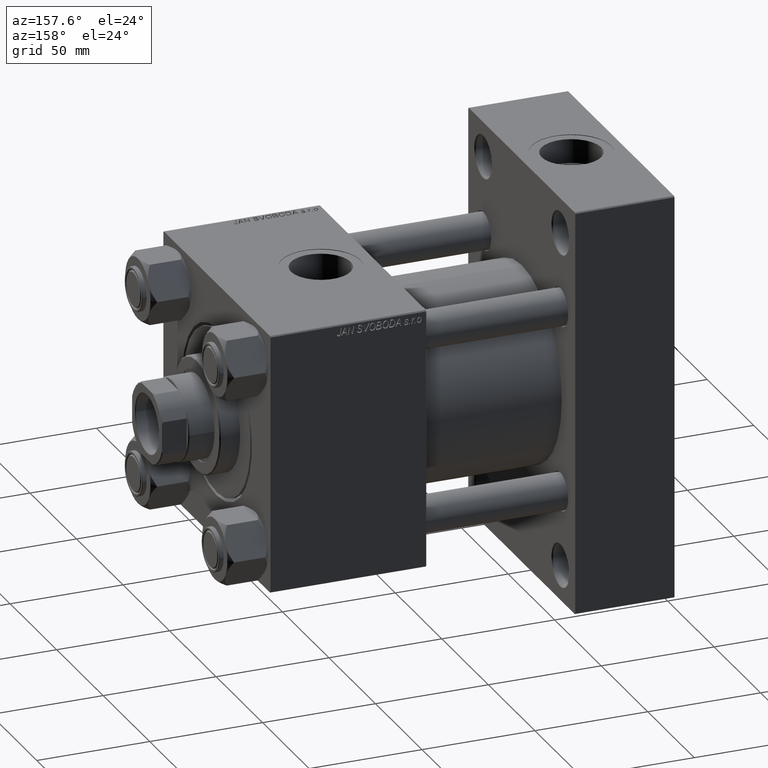
[diagram: clean part render]
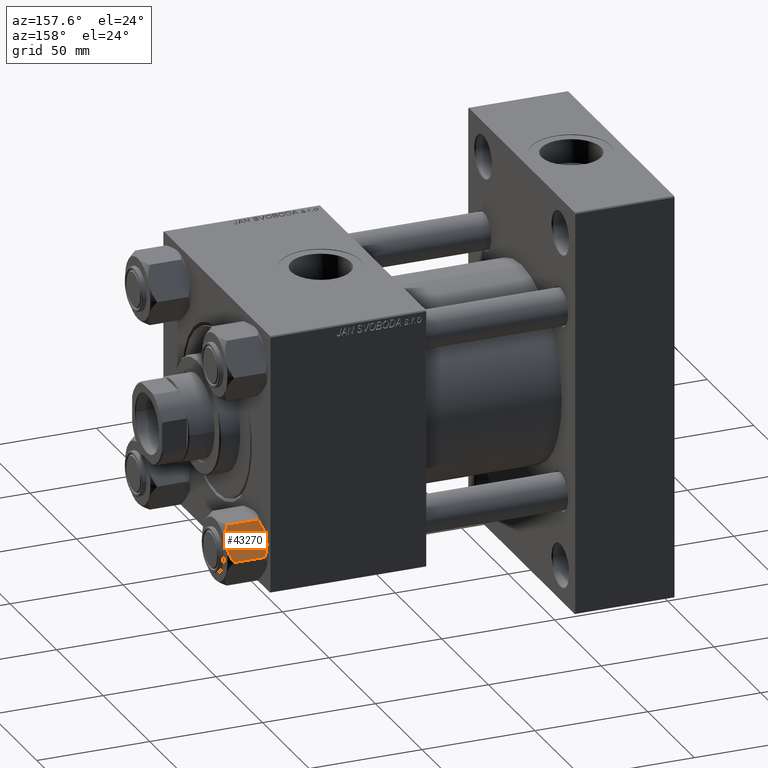
[diagram: same view with one face highlighted and labeled with its STEP entity id]
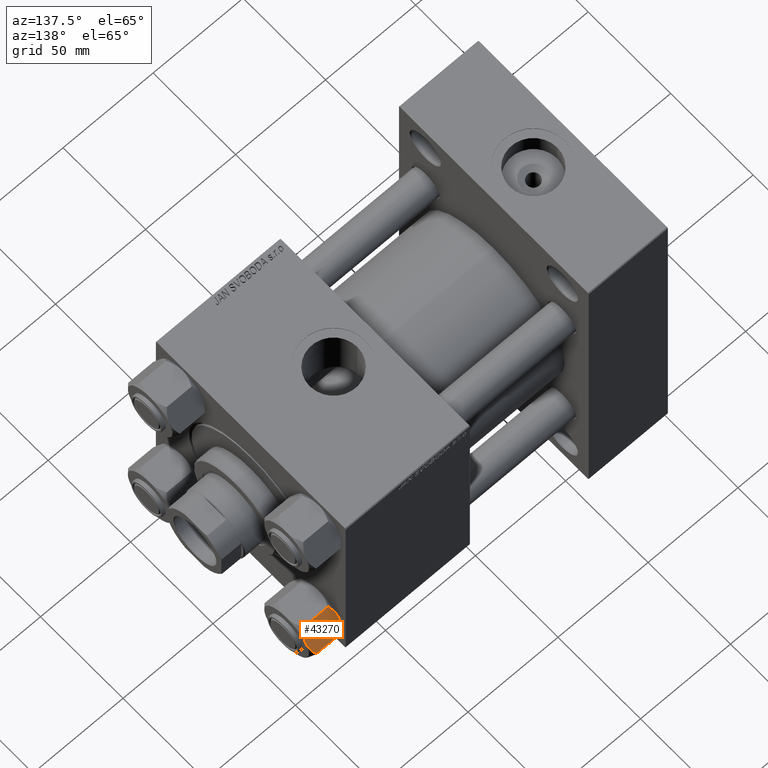
[diagram: same view with one face highlighted and labeled with its STEP entity id]
A machine part, auxiliary view. The second image highlights one B-rep face of the part: STEP entity #43270.
A second angle (auxiliary view) of the same face is appended — the face is thin or edge-on in the first view.
In plain terms, the highlighted planar face has unit normal (-0, -0.866, -0.5).
Its self-contained STEP definition (entity closure, byte-faithful):
#900 = EDGE_CURVE ( 'NONE', #38162, #44359, #34980, .T. ) ;
#1143 = CARTESIAN_POINT ( 'NONE',  ( -7.809999999999999609, -13.52731680711293727, -18.00000000000000000 ) ) ;
#2049 = VECTOR ( 'NONE', #3247, 1000.000000000000000 ) ;
#2187 = EDGE_CURVE ( 'NONE', #48118, #24276, #43712, .T. ) ;
#2290 = CARTESIAN_POINT ( 'NONE',  ( -11.71499999999999986, -6.763658403556454424, -18.00000000000000000 ) ) ;
#2307 = CARTESIAN_POINT ( 'NONE',  ( -10.40215497533437805, -9.037572688741335014, -0.1971866459924560555 ) ) ;
#3247 = DIRECTION ( 'NONE',  ( -0.000000000000000000, -0.000000000000000000, 1.000000000000000000 ) ) ;
#3685 = ORIENTED_EDGE ( 'NONE', *, *, #45325, .F. ) ;
#4723 = DIRECTION ( 'NONE',  ( -0.4999999999999993894, 0.8660254037844389297, 0.000000000000000000 ) ) ;
#5690 = CARTESIAN_POINT ( 'NONE',  ( -13.04337073483127973, -4.462852799541074056, -0.2430846701012976674 ) ) ;
#5782 = EDGE_CURVE ( 'NONE', #49976, #39291, #49123, .T. ) ;
#6100 = CARTESIAN_POINT ( 'NONE',  ( -11.38181071908714515, -7.340759166634855504, -17.99999999999998934 ) ) ;
#6547 = ORIENTED_EDGE ( 'NONE', *, *, #5782, .F. ) ;
#6570 = CARTESIAN_POINT ( 'NONE',  ( -7.809999999999999609, -13.52731680711293727, -18.00000000000000000 ) ) ;
#6867 = CARTESIAN_POINT ( 'NONE',  ( -9.114548888011793082, -11.26777185211902399, -17.08577173959729834 ) ) ;
#6868 = VECTOR ( 'NONE', #14169, 999.9999999999998863 ) ;
#7177 = CARTESIAN_POINT ( 'NONE',  ( -14.92394044919338292, -1.205610507090625561, -16.56553707812498999 ) ) ;
#7236 = DIRECTION ( 'NONE',  ( 0.4999999999999994449, -0.8660254037844390407, 0.000000000000000000 ) ) ;
#7745 = ORIENTED_EDGE ( 'NONE', *, *, #9347, .T. ) ;
#9347 = EDGE_CURVE ( 'NONE', #38987, #44359, #25960, .T. ) ;
#9931 = CARTESIAN_POINT ( 'NONE',  ( -9.439480280627266851, -10.70497417113491245, -0.7317196846281139866 ) ) ;
#10138 = LINE ( 'NONE', #37718, #29041 ) ;
#10271 = CARTESIAN_POINT ( 'NONE',  ( -12.38621571200405569, -5.601078687526920064, -0.05089381635301479939 ) ) ;
#10760 = EDGE_CURVE ( 'NONE', #39291, #15651, #10138, .T. ) ;
#10842 = ORIENTED_EDGE ( 'NONE', *, *, #2187, .F. ) ;
#11140 = ORIENTED_EDGE ( 'NONE', *, *, #17003, .F. ) ;
#11242 = CARTESIAN_POINT ( 'NONE',  ( -15.22736220980735489, -0.6800686015852174249, -16.29368822085854873 ) ) ;
#11664 = VECTOR ( 'NONE', #46936, 999.9999999999998863 ) ;
#11665 = B_SPLINE_CURVE_WITH_KNOTS ( 'NONE', 3,
 ( #30406, #22983, #45952, #34740, #42394, #7177, #11242, #30902 ),
 .UNSPECIFIED., .F., .F.,
 ( 4, 2, 2, 4 ),
 ( 0.007890825462474411814, 0.01181022244528552416, 0.01376992093669107860, 0.01572961942809663477 ),
 .UNSPECIFIED. ) ;
#12540 = ORIENTED_EDGE ( 'NONE', *, *, #20776, .F. ) ;
#14169 = DIRECTION ( 'NONE',  ( -0.4999999999999994449, 0.8660254037844390407, 0.000000000000000000 ) ) ;
#14186 = CARTESIAN_POINT ( 'NONE',  ( -7.809999999999999609, -13.52731680711293727, -1.999999999999998224 ) ) ;
#14264 = CARTESIAN_POINT ( 'NONE',  ( -7.903528262322684128, -13.36532110482641400, -2.000000000000000000 ) ) ;
#15171 = LINE ( 'NONE', #34859, #48658 ) ;
#15369 = VERTEX_POINT ( 'NONE', #39232 ) ;
#15420 = DIRECTION ( 'NONE',  ( -0.4999999999999994449, 0.8660254037844390407, 0.000000000000000000 ) ) ;
#15651 = VERTEX_POINT ( 'NONE', #41506 ) ;
#17003 = EDGE_CURVE ( 'NONE', #15651, #15369, #31717, .T. ) ;
#17362 = EDGE_CURVE ( 'NONE', #24276, #49976, #11665, .T. ) ;
#17847 = CARTESIAN_POINT ( 'NONE',  ( -8.202637790192653711, -12.84724820552769664, -1.706311779141443496 ) ) ;
#18839 = CARTESIAN_POINT ( 'NONE',  ( -10.38662926516872709, -9.064464007571841009, -17.75691532989870325 ) ) ;
#19995 = ORIENTED_EDGE ( 'NONE', *, *, #45752, .F. ) ;
#20032 = AXIS2_PLACEMENT_3D ( 'NONE', #1143, #43764, #4723 ) ;
#20113 = B_SPLINE_CURVE_WITH_KNOTS ( 'NONE', 3,
 ( #37339, #45241, #48541, #48793, #5690, #10271, #41162, #32996 ),
 .UNSPECIFIED., .F., .F.,
 ( 4, 2, 2, 4 ),
 ( 4.472842641998575579E-07, 0.003945636373369311792, 0.005918230917921869609, 0.007890825462474427426 ),
 .UNSPECIFIED. ) ;
#20287 = ORIENTED_EDGE ( 'NONE', *, *, #10760, .F. ) ;
#20776 = EDGE_CURVE ( 'NONE', #15369, #37996, #20113, .T. ) ;
#21370 = DIRECTION ( 'NONE',  ( -0.000000000000000000, -0.000000000000000000, 1.000000000000000000 ) ) ;
#21587 = CARTESIAN_POINT ( 'NONE',  ( -7.809999999999999609, -13.52731680711293727, -16.00000000000000000 ) ) ;
#22425 = CARTESIAN_POINT ( 'NONE',  ( -10.06459418565413166, -9.622245127110597096, -17.61639331488793303 ) ) ;
#22983 = CARTESIAN_POINT ( 'NONE',  ( -12.37702203890362362, -5.617002596445043849, -17.99999999999999645 ) ) ;
#23161 = ORIENTED_EDGE ( 'NONE', *, *, #900, .F. ) ;
#23849 = PLANE ( 'NONE',  #20032 ) ;
#24276 = VERTEX_POINT ( 'NONE', #42652 ) ;
#24360 = FACE_OUTER_BOUND ( 'NONE', #49610, .T. ) ;
#24895 = CARTESIAN_POINT ( 'NONE',  ( -11.71500000000000163, -6.763658403556456200, 0.000000000000000000 ) ) ;
#25253 = CARTESIAN_POINT ( 'NONE',  ( -11.71500000000000163, -6.763658403556456200, 0.000000000000000000 ) ) ;
#25916 = CARTESIAN_POINT ( 'NONE',  ( -7.903528262322684128, -13.36532110482641400, -2.000000000000000000 ) ) ;
#25960 = LINE ( 'NONE', #6570, #2049 ) ;
#29041 = VECTOR ( 'NONE', #21370, 1000.000000000000000 ) ;
#29707 = CARTESIAN_POINT ( 'NONE',  ( -15.61999999999999567, 8.023367828467702033E-15, -16.00000000000000000 ) ) ;
#30406 = CARTESIAN_POINT ( 'NONE',  ( -11.71499999999999986, -6.763658403556454424, -18.00000000000000000 ) ) ;
#30902 = CARTESIAN_POINT ( 'NONE',  ( -15.52647173767731914, -0.1619957022864979002, -16.00000000000000000 ) ) ;
#31717 = LINE ( 'NONE', #42207, #44825 ) ;
#32996 = CARTESIAN_POINT ( 'NONE',  ( -11.71500000000000163, -6.763658403556456200, 0.000000000000000000 ) ) ;
#33444 = CARTESIAN_POINT ( 'NONE',  ( -9.124083218049248600, -11.25125790807802595, -0.9473872146228143887 ) ) ;
#34740 = CARTESIAN_POINT ( 'NONE',  ( -13.99051971937273464, -2.822342635978000391, -17.26828031537188224 ) ) ;
#34859 = CARTESIAN_POINT ( 'NONE',  ( -7.809999999999999609, -13.52731680711293727, -16.00000000000000000 ) ) ;
#34980 = LINE ( 'NONE', #38544, #11664 ) ;
#37339 = CARTESIAN_POINT ( 'NONE',  ( -15.52647173767731914, -0.1619957022864979002, -2.000000000000000000 ) ) ;
#37718 = CARTESIAN_POINT ( 'NONE',  ( -15.61999999999999567, 8.023367828467702033E-15, -18.00000000000000000 ) ) ;
#37996 = VERTEX_POINT ( 'NONE', #24895 ) ;
#38144 = ORIENTED_EDGE ( 'NONE', *, *, #17362, .F. ) ;
#38162 = VERTEX_POINT ( 'NONE', #25916 ) ;
#38254 = CARTESIAN_POINT ( 'NONE',  ( -8.502393313253762130, -12.32805640973646710, -16.58801072835992585 ) ) ;
#38544 = CARTESIAN_POINT ( 'NONE',  ( -7.809999999999999609, -13.52731680711293727, -1.999999999999998224 ) ) ;
#38663 = B_SPLINE_CURVE_WITH_KNOTS ( 'NONE', 3,
 ( #25253, #44911, #2307, #9931, #33444, #49217, #17847, #14264 ),
 .UNSPECIFIED., .F., .F.,
 ( 4, 2, 2, 4 ),
 ( 0.007890825462474427426, 0.01181022244528554151, 0.01376992093669109421, 0.01572961942809664865 ),
 .UNSPECIFIED. ) ;
#38987 = VERTEX_POINT ( 'NONE', #43245 ) ;
#39232 = CARTESIAN_POINT ( 'NONE',  ( -15.52647173767731914, -0.1619957022864979002, -2.000000000000000000 ) ) ;
#39291 = VERTEX_POINT ( 'NONE', #29707 ) ;
#41162 = CARTESIAN_POINT ( 'NONE',  ( -12.04818928091285635, -6.186557640478053344, -6.945670167485262780E-17 ) ) ;
#41327 = CARTESIAN_POINT ( 'NONE',  ( -7.903528262322684128, -13.36532110482641400, -16.00000000000000000 ) ) ;
#41506 = CARTESIAN_POINT ( 'NONE',  ( -15.61999999999999567, 8.023367828467702033E-15, -1.999999999999998224 ) ) ;
#41541 = CARTESIAN_POINT ( 'NONE',  ( -7.903528262322684128, -13.36532110482641400, -16.00000000000000000 ) ) ;
#42207 = CARTESIAN_POINT ( 'NONE',  ( -7.809999999999999609, -13.52731680711293727, -1.999999999999998224 ) ) ;
#42394 = CARTESIAN_POINT ( 'NONE',  ( -14.30591678195075467, -2.276058899034888672, -17.05261278537718539 ) ) ;
#42652 = CARTESIAN_POINT ( 'NONE',  ( -11.71499999999999986, -6.763658403556454424, -18.00000000000000000 ) ) ;
#43245 = CARTESIAN_POINT ( 'NONE',  ( -7.809999999999999609, -13.52731680711293727, -16.00000000000000000 ) ) ;
#43270 = ADVANCED_FACE ( 'NONE', ( #24360 ), #23849, .F. ) ;
#43712 = B_SPLINE_CURVE_WITH_KNOTS ( 'NONE', 3,
 ( #41327, #38254, #6867, #22425, #18839, #49955, #6100, #2290 ),
 .UNSPECIFIED., .F., .F.,
 ( 4, 2, 2, 4 ),
 ( 4.472842641823326580E-07, 0.003945636373369299649, 0.005918230917921855731, 0.007890825462474411814 ),
 .UNSPECIFIED. ) ;
#43764 = DIRECTION ( 'NONE',  ( 0.8660254037844390407, 0.4999999999999994449, 0.000000000000000000 ) ) ;
#44359 = VERTEX_POINT ( 'NONE', #14186 ) ;
#44825 = VECTOR ( 'NONE', #7236, 999.9999999999998863 ) ;
#44911 = CARTESIAN_POINT ( 'NONE',  ( -11.05297796109638320, -7.910314210667868551, 1.084202172485506160E-16 ) ) ;
#45241 = CARTESIAN_POINT ( 'NONE',  ( -14.92760668674624469, -1.199260397376444409, -1.411989271640068155 ) ) ;
#45325 = EDGE_CURVE ( 'NONE', #38987, #48118, #15171, .T. ) ;
#45752 = EDGE_CURVE ( 'NONE', #37996, #38162, #38663, .T. ) ;
#45952 = CARTESIAN_POINT ( 'NONE',  ( -13.02784502466562699, -4.489744118371577386, -17.80281335400754017 ) ) ;
#46936 = DIRECTION ( 'NONE',  ( 0.4999999999999994449, -0.8660254037844390407, 0.000000000000000000 ) ) ;
#48118 = VERTEX_POINT ( 'NONE', #41541 ) ;
#48541 = CARTESIAN_POINT ( 'NONE',  ( -14.31545111198821019, -2.259544954993887078, -0.9142282604026940040 ) ) ;
#48658 = VECTOR ( 'NONE', #15420, 999.9999999999998863 ) ;
#48793 = CARTESIAN_POINT ( 'NONE',  ( -13.36540581434586628, -3.905071680002313084, -0.3836066851120598087 ) ) ;
#49123 = LINE ( 'NONE', #21587, #6868 ) ;
#49217 = CARTESIAN_POINT ( 'NONE',  ( -8.506059550806629233, -12.32170630002229217, -1.434462921875003572 ) ) ;
#49610 = EDGE_LOOP ( 'NONE', ( #3685, #7745, #23161, #19995, #12540, #11140, #20287, #6547, #38144, #10842 ) ) ;
#49955 = CARTESIAN_POINT ( 'NONE',  ( -11.04378428799595291, -7.926238119585994113, -17.94910618364698252 ) ) ;
#49976 = VERTEX_POINT ( 'NONE', #50250 ) ;
#50250 = CARTESIAN_POINT ( 'NONE',  ( -15.52647173767731914, -0.1619957022864979002, -16.00000000000000000 ) ) ;